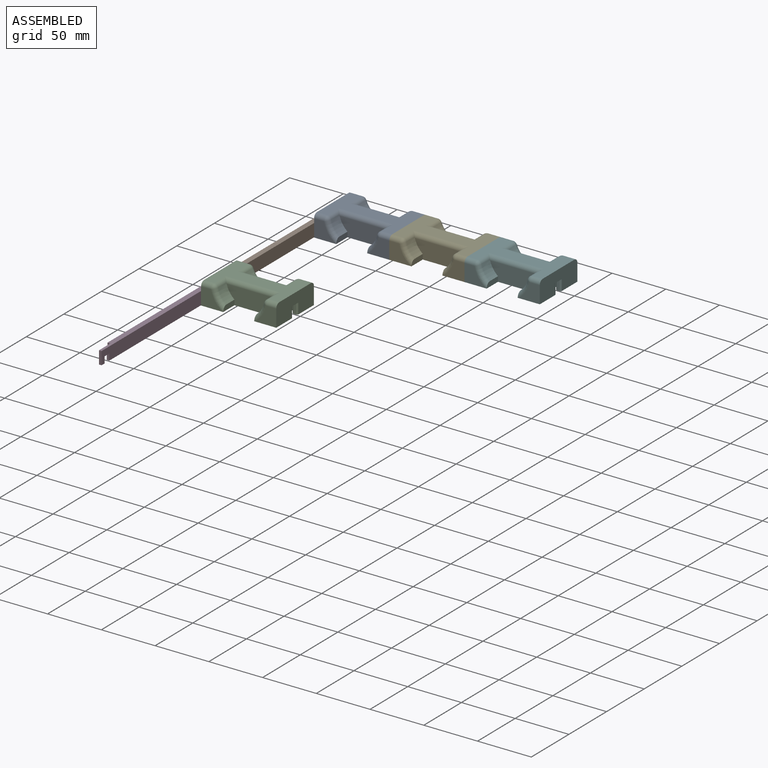
[diagram: assembled view]
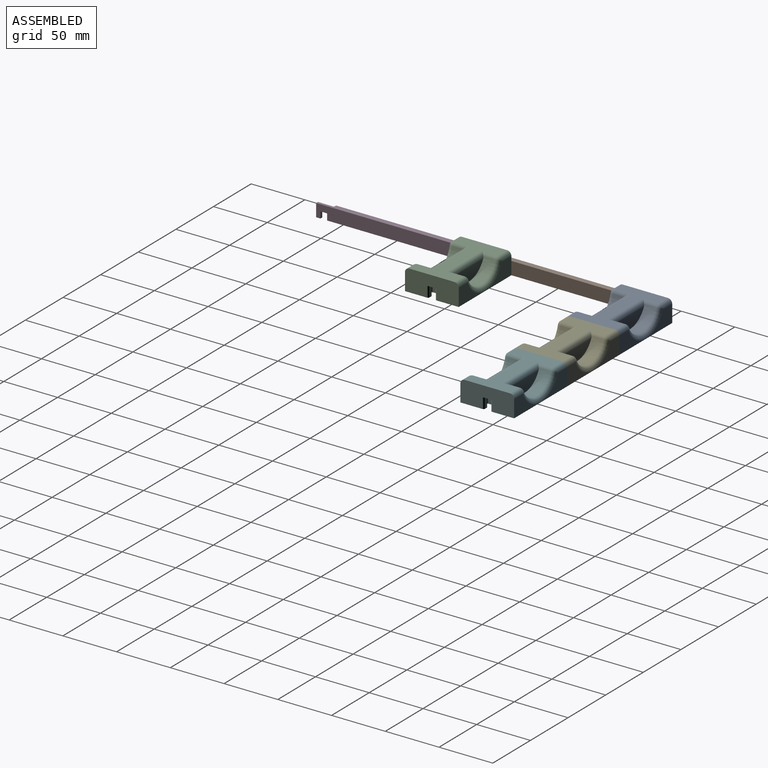
[diagram: assembled view, second angle]
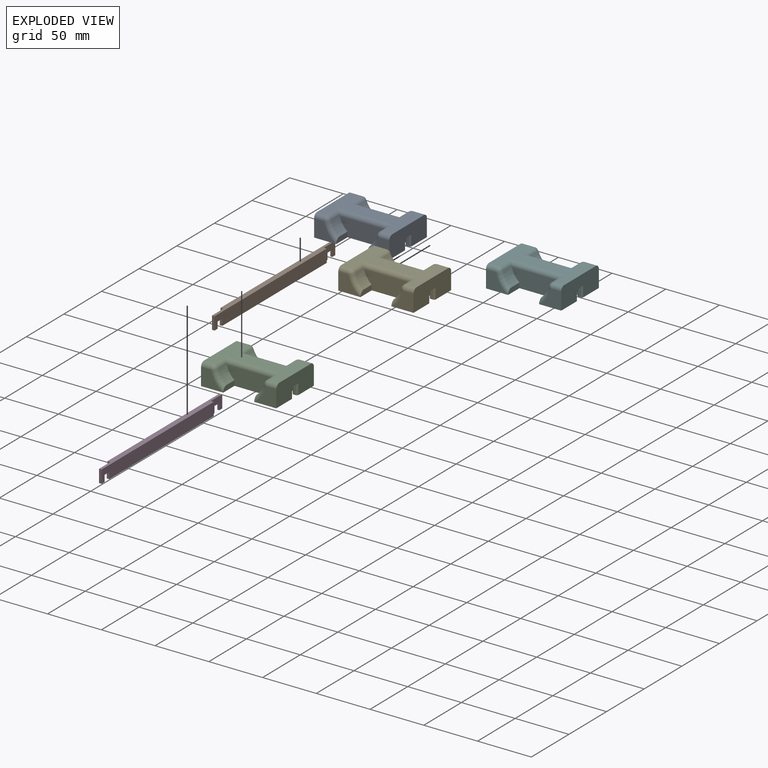
[diagram: exploded view]
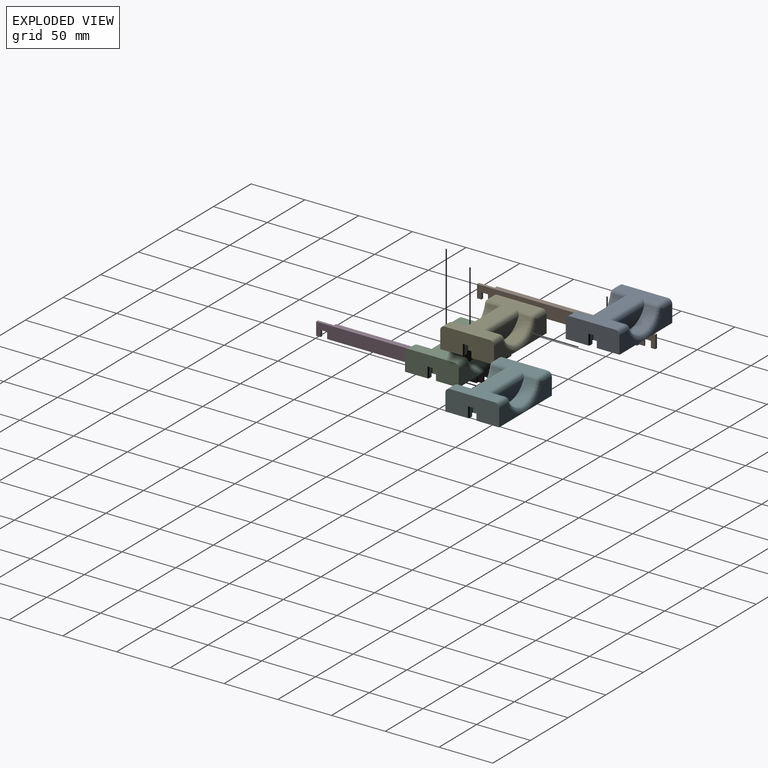
[diagram: exploded view, second angle]
ASSEMBLY  parts=6 mates=5
PART A: 78 faces, bbox 80.3x50x25.1 mm
  f0: plane 35x16mm, normal (0,1,0), area 289.2mm2, adj f7,f10,f54,f56
  f1: plane 10x1.5mm, normal (-1,0,0), area 15mm2, adj f7,f29,f30,f31
  f2: plane 10x2.2mm, normal (0,1,0), area 22mm2, adj f7,f29,f31,f34
  f3: plane 10x2.2mm, normal (0,-1,0), area 22mm2, adj f7,f29,f33,f35
  f4: plane 10x1.5mm, normal (-1,0,0), area 15mm2, adj f7,f29,f33,f36
  f5: plane 20.23x16mm, normal (0,-1,0), area 211.2mm2, adj f7,f11,f57,f59
  f6: plane 70x42mm, normal (0,0,1), area 1465.9mm2, adj f10,f11,f46,f47,f48,f49,f50,f51
  f7: plane 80.25x50mm, normal (0,0,-1), area 3061.9mm2, adj f0,f1,f2,f3,f4,f5,f9,f10
  f8: cylinder r=22.5mm len=12.19mm, axis (0,-1,0), area 160.2mm2, adj f14,f25,f50,f51,f62
  f9: plane 20.23x16mm, normal (0,-1,0), area 211.2mm2, adj f7,f10,f60,f62
  f10: plane 50x20mm, normal (-1,0,0), area 958.3mm2, adj f0,f6,f7,f9,f18,f19,f45,f56
  f11: plane 50x20mm, normal (1,0,0), area 901.1mm2, adj f5,f6,f7,f12,f29,f34,f35,f52
  f12: plane 35x16mm, normal (0,1,0), area 289.2mm2, adj f7,f11,f52,f54
  f13: cylinder r=22.5mm len=12.19mm, axis (0,-1,0), area 160.2mm2, adj f14,f24,f49,f50,f59
  f14: plane 43.37x16mm, normal (0,-1,0), area 561.6mm2, adj f7,f8,f13,f24,f25,f50
  f15: cylinder r=21mm len=39.18mm, axis (0,1,0), area 555.8mm2, adj f16,f46,f47,f48,f54
  f16: plane 37.95x12mm, normal (0,1,0), area 326.6mm2, adj f15,f47
  f17: plane 4x1.5mm, normal (1,0,0), area 6mm2, adj f7,f42,f43,f74
  f18: plane 4.27x3.75mm, normal (0,-1,0), area 15.1mm2, adj f7,f10,f43,f76,f77
  f19: plane 4.27x3.75mm, normal (0,1,0), area 15.1mm2, adj f7,f10,f38,f63,f64
  f20: plane 4x1.5mm, normal (1,0,0), area 6mm2, adj f7,f38,f39,f66
  f21: plane 4x2mm, normal (0,1,0), area 8mm2, adj f7,f39,f40,f68
  f22: plane 12x4mm, normal (-1,0,0), area 48mm2, adj f7,f40,f41,f70
  f23: plane 4x2mm, normal (0,-1,0), area 8mm2, adj f7,f41,f42,f72
  f24: plane 15x4.72mm, normal (-1,0,0), area 66.4mm2, adj f7,f13,f14,f59
  f25: plane 15x4.72mm, normal (1,0,0), area 66.4mm2, adj f7,f8,f14,f62
  f26: plane 10x2.2mm, normal (0,1,0), area 22mm2, adj f7,f29,f30,f32
  f27: plane 10x2.2mm, normal (0,-1,0), area 22mm2, adj f7,f29,f36,f37
  f28: plane 12.2x10mm, normal (1,0,0), area 122mm2, adj f7,f29,f32,f37
  f29: plane 15.2x10.4mm, normal (0,0,-1), area 111.3mm2, adj f1,f2,f3,f4,f11,f26,f27,f28
  f30: cylinder r=1.5mm len=10mm, axis (0,0,-1), area 23.6mm2, adj f1,f7,f26,f29
  f31: cylinder r=1.5mm len=10mm, axis (0,0,-1), area 23.6mm2, adj f1,f2,f7,f29
  f32: cylinder r=1.5mm len=10mm, axis (0,0,1), area 23.6mm2, adj f7,f26,f28,f29
  f33: cylinder r=1.5mm len=10mm, axis (0,0,1), area 23.6mm2, adj f3,f4,f7,f29
  f34: cylinder r=1.5mm len=10mm, axis (0,0,1), area 23.6mm2, adj f2,f7,f11,f29
  f35: cylinder r=1.5mm len=10mm, axis (0,0,-1), area 23.6mm2, adj f3,f7,f11,f29
  f36: cylinder r=1.5mm len=10mm, axis (0,0,1), area 23.6mm2, adj f4,f7,f27,f29
  f37: cylinder r=1.5mm len=10mm, axis (0,0,-1), area 23.6mm2, adj f7,f27,f28,f29
  f38: cylinder r=1.5mm len=4mm, axis (0,0,-1), area 9.4mm2, adj f7,f19,f20,f65
  f39: cylinder r=1.5mm len=4mm, axis (0,0,1), area 9.4mm2, adj f7,f20,f21,f67
  f40: cylinder r=1.5mm len=4mm, axis (0,0,-1), area 9.4mm2, adj f7,f21,f22,f69
  f41: cylinder r=1.5mm len=4mm, axis (0,0,1), area 9.4mm2, adj f7,f22,f23,f71
  f42: cylinder r=1.5mm len=4mm, axis (0,0,-1), area 9.4mm2, adj f7,f17,f23,f73
  f43: cylinder r=1.5mm len=4mm, axis (0,0,1), area 9.4mm2, adj f7,f17,f18,f75
  f44: plane 13x8.25mm, normal (0,0,1), area 62.5mm2, adj f45,f64,f65,f66,f67,f68,f69,f70
  f45: cylinder r=1mm len=4mm, axis (0,-1,0), area 6.3mm2, adj f10,f44,f63,f77
  f46: cylinder r=4mm len=15mm, axis (0,1,0), area 61.9mm2, adj f6,f15,f47,f55
  f47: cylinder r=4mm len=46.65mm, axis (-1,0,0), area 260.7mm2, adj f6,f15,f16,f46,f48
  f48: cylinder r=4mm len=15mm, axis (0,1,0), area 61.9mm2, adj f6,f15,f47,f53
  f49: cylinder r=4mm len=15mm, axis (0,-1,0), area 68.2mm2, adj f6,f13,f50,f58
  f50: cylinder r=4mm len=51.62mm, axis (1,0,0), area 292.3mm2, adj f6,f8,f13,f14,f49,f51
  f51: cylinder r=4mm len=15mm, axis (0,-1,0), area 68.2mm2, adj f6,f8,f50,f61
  f52: cylinder r=4mm len=11.68mm, axis (1,0,0), area 73.4mm2, adj f6,f11,f12,f53
  f53: sphere r=4mm, area 19.2mm2, adj f48,f52,f54
  f54: torus R=25mm, axis (0,1,0), area 339.3mm2, adj f0,f12,f15,f53,f55
  f55: sphere r=4mm, area 19.2mm2, adj f46,f54,f56
  f56: cylinder r=4mm len=11.68mm, axis (1,0,0), area 73.4mm2, adj f0,f6,f10,f55
  f57: cylinder r=4mm len=9.19mm, axis (-1,0,0), area 57.7mm2, adj f5,f6,f11,f58
  f58: sphere r=4mm, area 21.5mm2, adj f49,f57,f59
  f59: torus R=26.5mm, axis (0,1,0), area 104.8mm2, adj f5,f7,f13,f24,f58
  f60: cylinder r=4mm len=9.19mm, axis (-1,0,0), area 57.7mm2, adj f6,f9,f10,f61
  f61: sphere r=4mm, area 21.5mm2, adj f51,f60,f62
  f62: torus R=26.5mm, axis (0,1,0), area 104.8mm2, adj f7,f8,f9,f25,f61
  f63: torus R=2mm, axis (0,1,0), area 1.9mm2, adj f10,f19,f45,f64
  f64: cylinder r=1mm len=2.75mm, axis (1,0,0), area 4.3mm2, adj f19,f44,f63,f65
  f65: torus R=2.5mm, axis (0,0,-1), area 4.6mm2, adj f38,f44,f64,f66
  f66: cylinder r=1mm len=1.5mm, axis (0,-1,0), area 2.4mm2, adj f20,f44,f65,f67
  f67: torus R=0.5mm, axis (0,0,-1), area 2.8mm2, adj f39,f44,f66,f68
  f68: cylinder r=1mm len=2mm, axis (1,0,0), area 3.1mm2, adj f21,f44,f67,f69
  f69: torus R=0.5mm, axis (0,0,-1), area 2.8mm2, adj f40,f44,f68,f70
  f70: cylinder r=1mm len=12mm, axis (0,1,0), area 18.8mm2, adj f22,f44,f69,f71
  f71: torus R=0.5mm, axis (0,0,-1), area 2.8mm2, adj f41,f44,f70,f72
  f72: cylinder r=1mm len=2mm, axis (-1,0,0), area 3.1mm2, adj f23,f44,f71,f73
  f73: torus R=0.5mm, axis (0,0,-1), area 2.8mm2, adj f42,f44,f72,f74
  f74: cylinder r=1mm len=1.5mm, axis (0,-1,0), area 2.4mm2, adj f17,f44,f73,f75
  f75: torus R=2.5mm, axis (0,0,-1), area 4.6mm2, adj f43,f44,f74,f76
  f76: cylinder r=1mm len=2.75mm, axis (-1,0,0), area 4.3mm2, adj f18,f44,f75,f77
  f77: torus R=2mm, axis (0,1,0), area 1.9mm2, adj f10,f18,f45,f76
PART B: 20 faces, bbox 5x164x12 mm
  f0: plane 12x2.4mm, normal (0,1,0), area 28.8mm2, adj f1,f11,f13,f19
  f1: plane 164x5mm, normal (0,0,1), area 742mm2, adj f0,f2,f12,f13,f16,f17,f18,f19
  f2: plane 149x12mm, normal (1,0,0), area 1732.8mm2, adj f1,f4,f5,f7,f12,f14,f15,f18
  f3: plane 6x0.9mm, normal (0,-1,0), area 5.4mm2, adj f4,f7,f15,f17
  f4: plane 143.6x5mm, normal (0,0,-1), area 692.6mm2, adj f2,f3,f8,f13,f15,f16,f17,f18
  f5: plane 4x2.4mm, normal (0,0,-1), area 9.1mm2, adj f2,f6,f12,f14,f17
  f6: plane 6x0.9mm, normal (0,1,0), area 5.4mm2, adj f5,f7,f14,f17
  f7: plane 9.2x2.4mm, normal (0,0,-1), area 15.8mm2, adj f2,f3,f6,f14,f15,f17
  f8: plane 6x2.4mm, normal (0,1,0), area 14.4mm2, adj f4,f9,f13,f19
  f9: plane 6.2x2.4mm, normal (0,0,-1), area 14.9mm2, adj f8,f10,f13,f19
  f10: plane 6x2.4mm, normal (0,-1,0), area 14.4mm2, adj f9,f11,f13,f19
  f11: plane 4x2.4mm, normal (0,0,-1), area 9.6mm2, adj f0,f10,f13,f19
  f12: plane 12x2.4mm, normal (0,-1,0), area 28.8mm2, adj f1,f2,f5,f17
  f13: plane 149x12mm, normal (-1,0,0), area 1750.8mm2, adj f0,f1,f4,f8,f9,f10,f11,f16
  f14: cylinder r=1.5mm len=6mm, axis (0,0,-1), area 14.1mm2, adj f2,f5,f6,f7
  f15: cylinder r=1.5mm len=6mm, axis (0,0,1), area 14.1mm2, adj f2,f3,f4,f7
  f16: plane 12x2.6mm, normal (0,-1,0), area 31.2mm2, adj f1,f4,f13,f17
  f17: plane 15x12mm, normal (-1,0,0), area 142.8mm2, adj f1,f3,f4,f5,f6,f7,f12,f16
  f18: plane 12x2.6mm, normal (0,1,0), area 31.2mm2, adj f1,f2,f4,f19
  f19: plane 15x12mm, normal (1,0,0), area 142.8mm2, adj f0,f1,f4,f8,f9,f10,f11,f18
PART C: same geometry as A
PART D: same geometry as B
PART E: same geometry as A
PART F: same geometry as A
PLACE A t=(-62.35,-0.37,5.09)mm
PLACE B rot(axis=(0,0,1),180deg) t=(-93.18,-40.23,5.09)mm
PLACE C t=(-62.6,-150.17,5.09)mm
PLACE D rot(axis=(0,0,1),180deg) t=(-93.43,-190.03,5.09)mm
PLACE E t=(7.65,-0.37,5.09)mm
PLACE F t=(77.65,-0.37,5.09)mm
MATE fastened A.f7 <-> B.f4  axis (0,0,-1) through (-98.18,7.28,5.09)mm
MATE fastened E.f9 <-> A.f5  axis (0,-1,0) through (-22.93,-13.22,5.09)mm
MATE fastened D.f4 <-> C.f7  axis (0,0,1) through (-98.43,-142.52,5.09)mm
MATE fastened F.f10 <-> E.f11  axis (1,0,0) through (47.07,-13.22,21.09)mm
MATE fastened C.f7 <-> B.f11  axis (0,0,-1) through (-93.18,-141.02,5.09)mm
